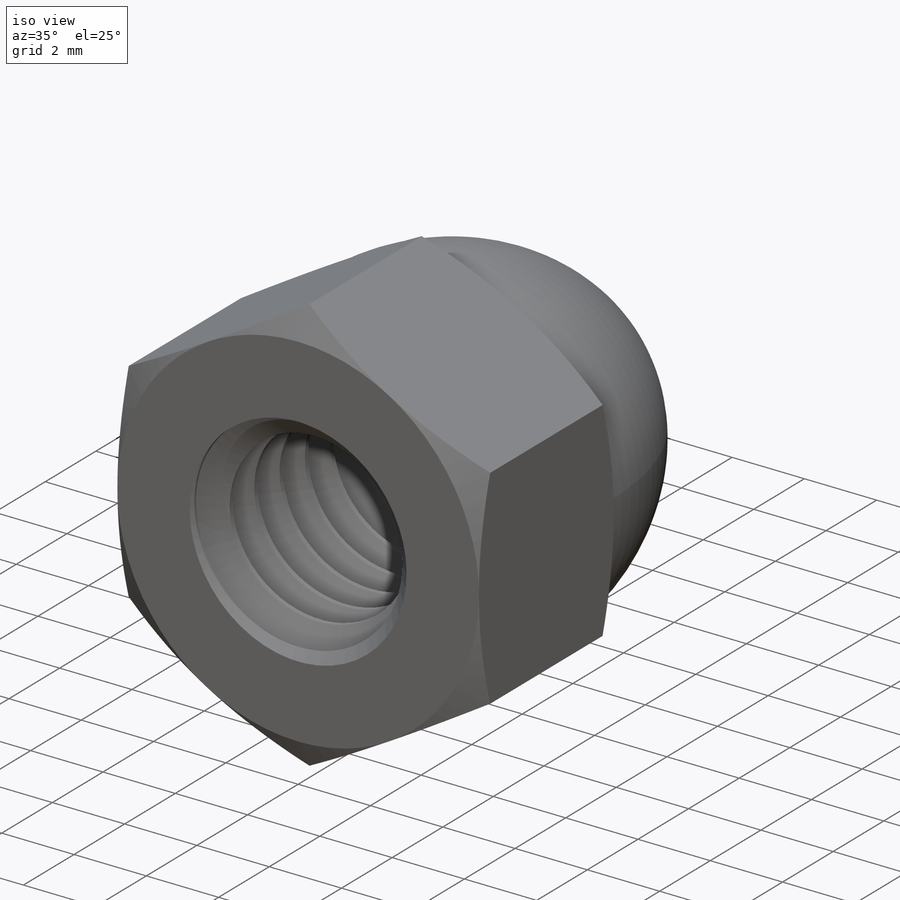
[diagram: iso view]
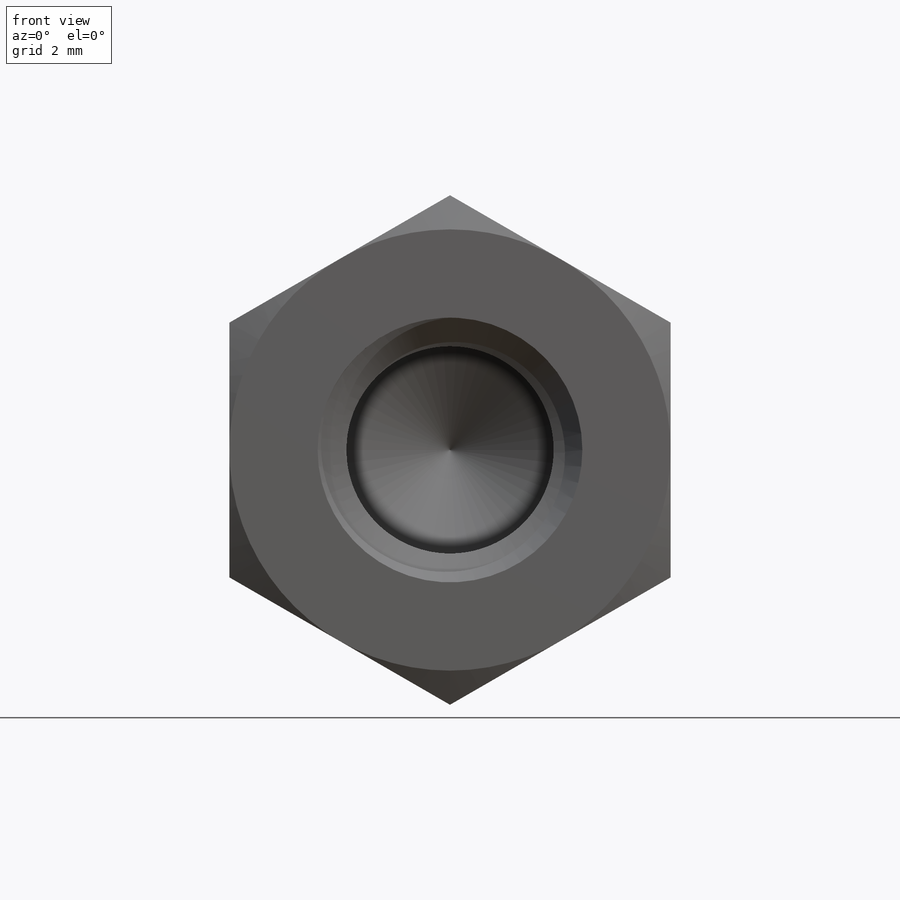
[diagram: front view]
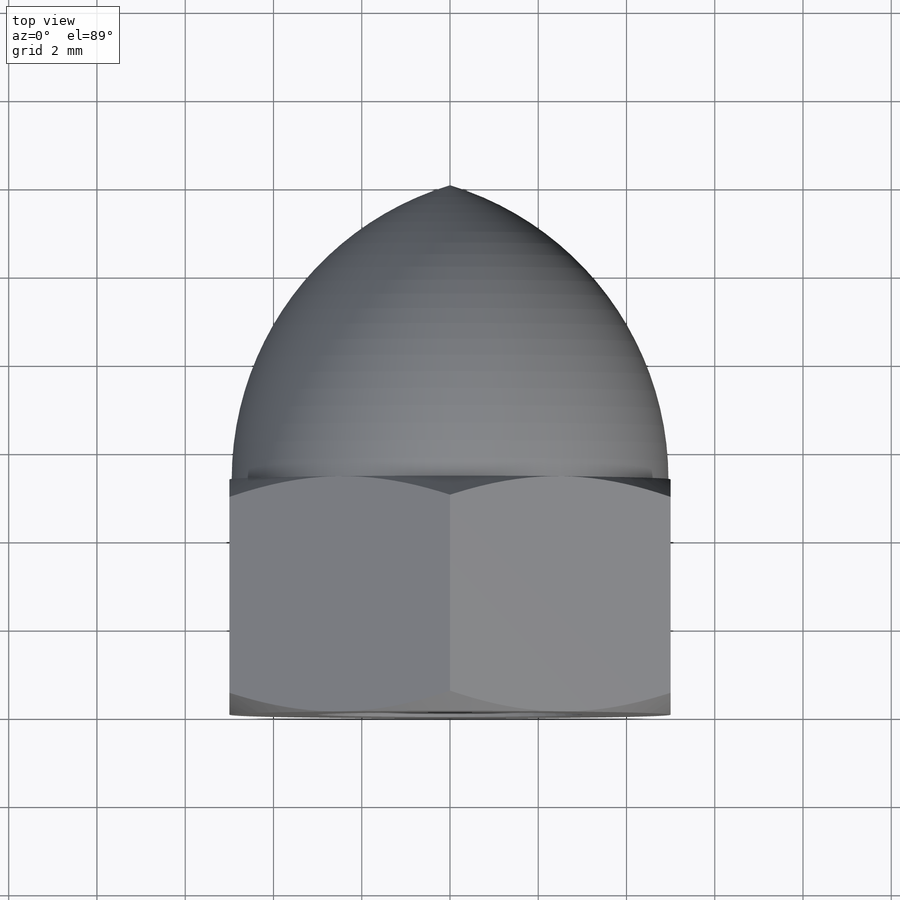
[diagram: top view]
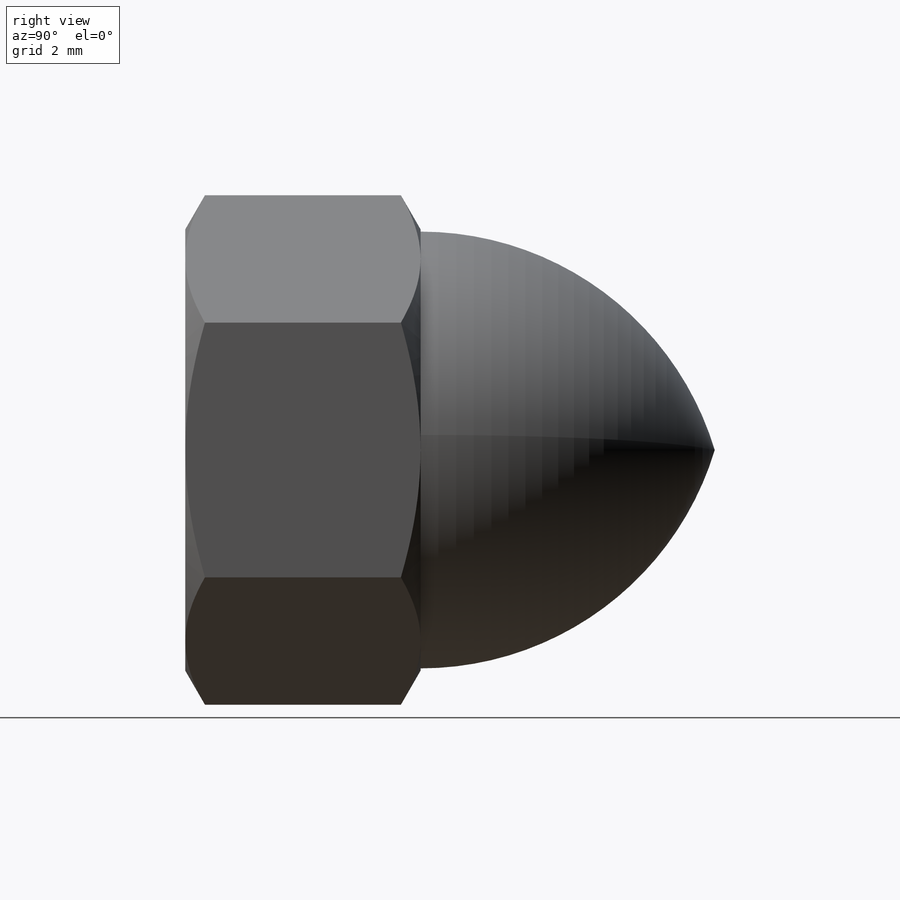
[diagram: right view]
SOLIDWORKS PART (.sldprt)
format: sldprt  version: not decoded by parser v0  size: 545,792 bytes
history: native  units: mm
features: sketch x11, cut_extrude x5, material x1, extrude x1, revolve x1, helix x1, sweep x1, cut_revolve x1 (+14 scaffold rows collapsed)
feature tree (36):
  scaffold x14  (default folders/planes/origin — collapsed)
  material  "AISI 304"
  sketch  "Sketch1"  dims[Hex=10.0mm]
  extrude  "Extrude1"  Depth=5.333333mm Nut Height=5.333333mm
  sketch  "Sketch2"
  cut_extrude  "Cut-Extrude1"  [1 undecoded]
  sketch  "Sketch3"  dims[D1=0.0mm]
  cut_extrude  "Cut-Extrude2"  [1 undecoded]
  sketch  "Sketch14"  dims[overall length=12.0mm D1=0.254mm]
  revolve  "Revolve1"  Angle=360deg
  sketch  "Sketch4"  dims[Thread Dia=6.0mm]
  cut_extrude  "Cut-Extrude3"  Depth=6mm Thread Depth=6mm
  sketch  "Sketch5"
  sketch  "Sketch15"
  helix  "Helix/Spiral2"  Pitch=8mm pitch=1mm
  sketch  "Sketch18"
  sketch  "Sketch16"  dims[c1.D1=~1.36653mm c2.D1=60.0deg c2.D2=0.125mm c2.D3=0.5mm]
  sweep  "Sweep1"
  sketch  "Sketch17"  dims[D1=0.0mm]
  cut_extrude  "Cut-Extrude8"  [1 undecoded]
  cut_extrude  "Cut-Extrude9"  [1 undecoded]
  sketch  "Sketch20"  dims[c1.D1=~0.333333mm c1.D2=~1.736041mm c2.D2=60.0deg]
  cut_revolve  "Cut-Revolve1"  Angle=360deg
decode coverage: 12 of 21 modeling features carry decoded parameters
note: ~ marks probable driven/reference dimensions
note: 4 parameter values undecoded
summary: no parameter record found for 4 features
note: suppression state not decoded; provenance and decode notes live in map.json
